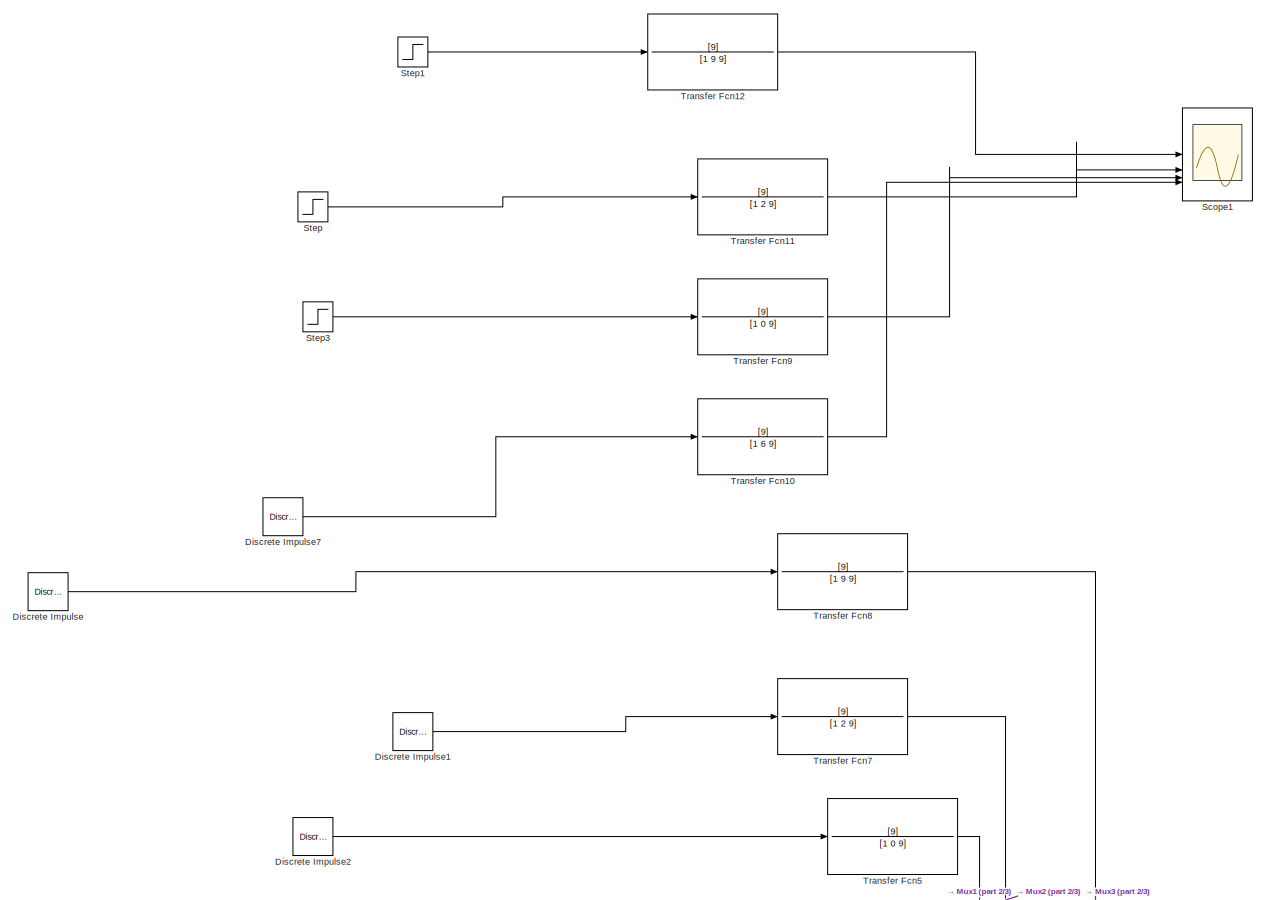
[diagram: root canvas - part 1/3, full width, top band]
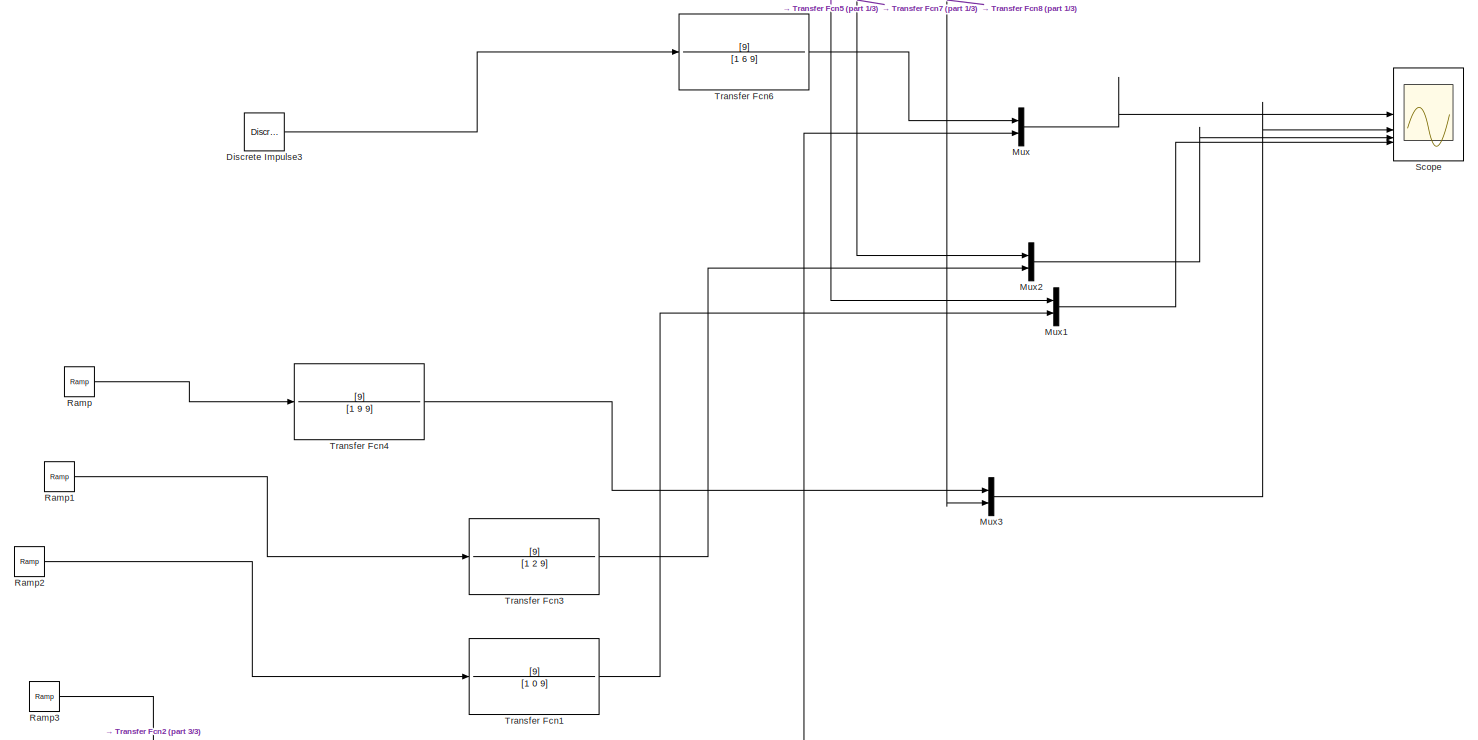
[diagram: root canvas - part 2/3, full width, bottom band]
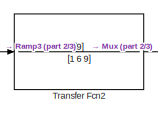
[diagram: root canvas - part 3/3, bottom center region]
MODEL slx_aedfab81750d
KIND model
CONFIG AbsTol = auto
CONFIG EnableMultiTasking = off
CONFIG FixedStep = auto
CONFIG MaxStep = auto
CONFIG MinStep = auto
CONFIG RelTol = 1e-3
CONFIG SampleTimeConstraint = Unconstrained
CONFIG SolverName = VariableStepAuto
CONFIG StartTime = 0.0
CONFIG StopTime = 10.0
BLOCK [Reference] Discrete Impulse  REF=dspsrcs4/Discrete 
Impulse
  SourceBlock = dspsrcs4/Discrete \nImpulse
  SourceType = Discrete Impulse
BLOCK [Reference] Discrete Impulse1  REF=dspsrcs4/Discrete 
Impulse
  SourceBlock = dspsrcs4/Discrete \nImpulse
  SourceType = Discrete Impulse
BLOCK [Reference] Discrete Impulse2  REF=dspsrcs4/Discrete 
Impulse
  SourceBlock = dspsrcs4/Discrete \nImpulse
  SourceType = Discrete Impulse
BLOCK [Reference] Discrete Impulse3  REF=dspsrcs4/Discrete 
Impulse
  SourceBlock = dspsrcs4/Discrete \nImpulse
  SourceType = Discrete Impulse
BLOCK [Reference] Discrete Impulse7  REF=dspsrcs4/Discrete 
Impulse
  SourceBlock = dspsrcs4/Discrete \nImpulse
  SourceType = Discrete Impulse
BLOCK [Mux] Mux
  DisplayOption = bar
  Inputs = 2
BLOCK [Mux] Mux1
  DisplayOption = bar
  Inputs = 2
BLOCK [Mux] Mux2
  DisplayOption = bar
  Inputs = 2
BLOCK [Mux] Mux3
  DisplayOption = bar
  Inputs = 2
BLOCK [Reference] Ramp  REF=simulink/Sources/Ramp
  SourceBlock = simulink/Sources/Ramp
  SourceType = Ramp
BLOCK [Reference] Ramp1  REF=simulink/Sources/Ramp
  SourceBlock = simulink/Sources/Ramp
  SourceType = Ramp
BLOCK [Reference] Ramp2  REF=simulink/Sources/Ramp
  SourceBlock = simulink/Sources/Ramp
  SourceType = Ramp
BLOCK [Reference] Ramp3  REF=simulink/Sources/Ramp
  SourceBlock = simulink/Sources/Ramp
  SourceType = Ramp
BLOCK [Scope] Scope
  Floating = off
  NumInputPorts = 4
  ScopeSpecificationString = Simulink.scopes.TimeScopeBlockCfg('CurrentConfiguration', extmgr.ConfigurationSet(extmgr.Configuration('Core','General UI',true),extmgr.Configuration('Core','Source UI',true),extmgr.Configuration('Sources','WiredSimulink',true),extmgr.Configuration('Visuals','Time Domain',true,'SerializedDisplays',{struct('MinYLimReal','-1.16667','MaxYLimReal','10.5','YLabelReal','','MinYLimMag','0.00000','MaxYLim...<+3750ch>
BLOCK [Scope] Scope1
  Floating = off
  NumInputPorts = 4
  ScopeSpecificationString = Simulink.scopes.TimeScopeBlockCfg('CurrentConfiguration', extmgr.ConfigurationSet(extmgr.Configuration('Core','General UI',true),extmgr.Configuration('Core','Source UI',true),extmgr.Configuration('Sources','WiredSimulink',true,'DataLoggingVariableName','ScopeData1'),extmgr.Configuration('Visuals','Time Domain',true,'SerializedDisplays',{struct('MinYLimReal','-0.125','MaxYLimReal','1.12496','YLabel...<+3985ch>
BLOCK [Step] Step
  SampleTime = 0
BLOCK [Step] Step1
  SampleTime = 0
BLOCK [Step] Step3
  SampleTime = 0
BLOCK [TransferFcn] Transfer Fcn1
  Denominator = [1 0 9]
  Numerator = [9]
BLOCK [TransferFcn] Transfer Fcn10
  Denominator = [1 6 9]
  Numerator = [9]
BLOCK [TransferFcn] Transfer Fcn11
  Denominator = [1 2 9]
  Numerator = [9]
BLOCK [TransferFcn] Transfer Fcn12
  Denominator = [1 9 9]
  Numerator = [9]
BLOCK [TransferFcn] Transfer Fcn2
  Denominator = [1 6 9]
  Numerator = [9]
BLOCK [TransferFcn] Transfer Fcn3
  Denominator = [1 2 9]
  Numerator = [9]
BLOCK [TransferFcn] Transfer Fcn4
  Denominator = [1 9 9]
  Numerator = [9]
BLOCK [TransferFcn] Transfer Fcn5
  Denominator = [1 0 9]
  Numerator = [9]
BLOCK [TransferFcn] Transfer Fcn6
  Denominator = [1 6 9]
  Numerator = [9]
BLOCK [TransferFcn] Transfer Fcn7
  Denominator = [1 2 9]
  Numerator = [9]
BLOCK [TransferFcn] Transfer Fcn8
  Denominator = [1 9 9]
  Numerator = [9]
BLOCK [TransferFcn] Transfer Fcn9
  Denominator = [1 0 9]
  Numerator = [9]
LINE Discrete Impulse1:1 -> Transfer Fcn7:1
LINE Discrete Impulse2:1 -> Transfer Fcn5:1
LINE Discrete Impulse3:1 -> Transfer Fcn6:1
LINE Discrete Impulse7:1 -> Transfer Fcn10:1
LINE Discrete Impulse:1 -> Transfer Fcn8:1
LINE Mux1:1 -> Scope:4
LINE Mux2:1 -> Scope:3
LINE Mux3:1 -> Scope:2
LINE Mux:1 -> Scope:1
LINE Ramp1:1 -> Transfer Fcn3:1
LINE Ramp2:1 -> Transfer Fcn1:1
LINE Ramp3:1 -> Transfer Fcn2:1
LINE Ramp:1 -> Transfer Fcn4:1
LINE Step1:1 -> Transfer Fcn12:1
LINE Step3:1 -> Transfer Fcn9:1
LINE Step:1 -> Transfer Fcn11:1
LINE Transfer Fcn10:1 -> Scope1:4
LINE Transfer Fcn11:1 -> Scope1:2
LINE Transfer Fcn12:1 -> Scope1:1
LINE Transfer Fcn1:1 -> Mux1:2
LINE Transfer Fcn2:1 -> Mux:2
LINE Transfer Fcn3:1 -> Mux2:2
LINE Transfer Fcn4:1 -> Mux3:1
LINE Transfer Fcn5:1 -> Mux1:1
LINE Transfer Fcn6:1 -> Mux:1
LINE Transfer Fcn7:1 -> Mux2:1
LINE Transfer Fcn8:1 -> Mux3:2
LINE Transfer Fcn9:1 -> Scope1:3
